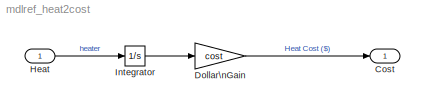
MODEL mdlref_heat2cost
KIND model
BLOCK [Outport] Cost
  BusOutputAsStruct = off
  IconDisplay = Port number
BLOCK [Gain] Dollar\nGain
  Gain = cost
BLOCK [Inport] Heat
  DataType = double
  IconDisplay = Port number
  LatchInput = off
  Port = 1
  PortDimensions = 1
  SampleTime = 0
  SamplingMode = Sample based
  SignalType = real
BLOCK [Integrator] Integrator
  Ports = [1, 1]
LINE Dollar\nGain:1 -> Cost:1
LINE Heat:1 -> Integrator:1
LINE Integrator:1 -> Dollar\nGain:1
